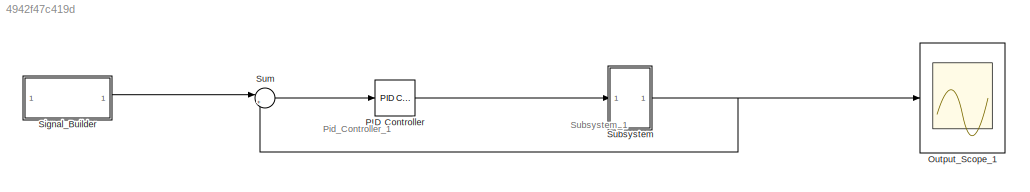
MODEL slx_4942f47c419d
KIND model
CONFIG AbsTol = auto
CONFIG EnableMultiTasking = off
CONFIG FixedStep = auto
CONFIG MaxStep = auto
CONFIG MinStep = auto
CONFIG RelTol = 1e-3
CONFIG SampleTimeConstraint = Unconstrained
CONFIG SolverName = VariableStepAuto
CONFIG StartTime = 0.0
CONFIG StopTime = 1000
BLOCK [Scope] Output_Scope_1
  Floating = off
  NumInputPorts = 1
  ScopeSpecificationString = Simulink.scopes.TimeScopeBlockCfg('CurrentConfiguration', extmgr.ConfigurationSet(extmgr.Configuration('Core','General UI',true),extmgr.Configuration('Core','Source UI',true),extmgr.Configuration('Sources','WiredSimulink',true),extmgr.Configuration('Visuals','Time Domain',true,'SerializedDisplays',{struct('MinYLimReal','-0.16657','MaxYLimReal','1.56962','YLabelReal','','MinYLimMag','0.00000','MaxY...<+1381ch>
BLOCK [Reference] PID Controller  REF=slpidlib/PID Controller
  LibrarySourceBlock = simulink/Continuous/PID Controller
  SourceBlock = slpidlib/PID Controller
  SourceType = PID 1dof
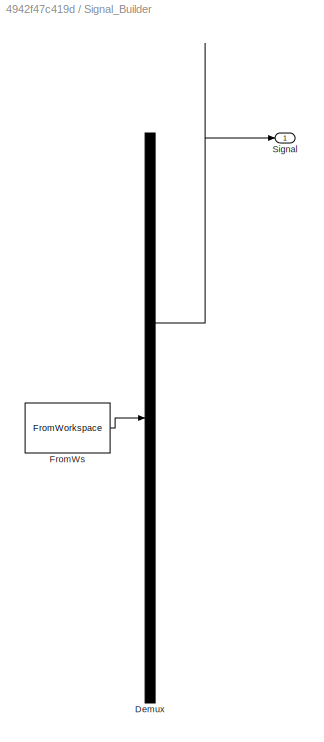
BLOCK [SubSystem] Signal_Builder
  ClipboardFcn = sigbuilder_block('clipboard');
  CloseFcn = sigbuilder_block('close');
  ContinueFcn = sigbuilder_block('continue');
  CopyFcn = sigbuilder_block('copy');
  DeleteFcn = sigbuilder_block('delete');
  LoadFcn = sigbuilder_block('load');
  MaskHideContents = on
  ModelCloseFcn = sigbuilder_block('modelClose');
  NameChangeFcn = sigbuilder_block('namechange');
  OpenFcn = sigbuilder_block('open',[184 155 551 361 ]);
  PauseFcn = sigbuilder_block('pause');
  PreSaveFcn = sigbuilder_block('preSave');
  StartFcn = sigbuilder_block('start');
  StopFcn = sigbuilder_block('stop');
  Tag = STV Subsys
BLOCK [Demux] Signal_Builder/Demux
  DisplayOption = none
  Outputs = 1
  Tag = STV Demux
BLOCK [FromWorkspace] Signal_Builder/FromWs
  Tag = STV FromWs
  VariableName = tuvar
BLOCK [Outport] Signal_Builder/Signal 
  Tag = STV Outport
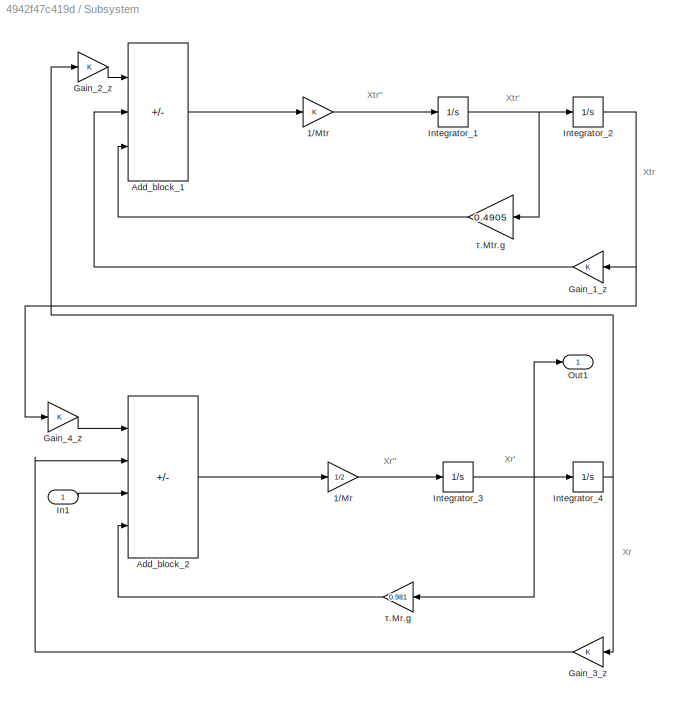
BLOCK [SubSystem] Subsystem
BLOCK [Gain] Subsystem/1//Mr
  Gain = 1/2
BLOCK [Gain] Subsystem/1//Mtr
BLOCK [Sum] Subsystem/Add_block_1
  IconShape = rectangular
  Inputs = +--
BLOCK [Sum] Subsystem/Add_block_2
  IconShape = rectangular
  Inputs = +-+-
BLOCK [Gain] Subsystem/Gain_1_z
BLOCK [Gain] Subsystem/Gain_2_z
BLOCK [Gain] Subsystem/Gain_3_z
BLOCK [Gain] Subsystem/Gain_4_z
BLOCK [Inport] Subsystem/In1
BLOCK [Integrator] Subsystem/Integrator_1
BLOCK [Integrator] Subsystem/Integrator_2
BLOCK [Integrator] Subsystem/Integrator_3
BLOCK [Integrator] Subsystem/Integrator_4
BLOCK [Outport] Subsystem/Out1
BLOCK [Gain] Subsystem/τ.Mr.g
  Gain = 0.981
BLOCK [Gain] Subsystem/τ.Mtr.g
  Gain = 0.4905
BLOCK [Sum] Sum
  Inputs = |+-
ANNOTATION (root): Pid_Controller_1
ANNOTATION (root): Subsystem_1
ANNOTATION Subsystem: Xtr''
ANNOTATION Subsystem: Xr
ANNOTATION Subsystem: Xr'
ANNOTATION Subsystem: Xr''
ANNOTATION Subsystem: Xtr
ANNOTATION Subsystem: Xtr'
LINE PID Controller:1 -> Subsystem:1
LINE Signal_Builder:1 -> Sum:1
LINE Subsystem/1//Mr:1 -> Subsystem/Integrator_3:1
LINE Subsystem/1//Mtr:1 -> Subsystem/Integrator_1:1
LINE Subsystem/Add_block_1:1 -> Subsystem/1//Mtr:1
LINE Subsystem/Add_block_2:1 -> Subsystem/1//Mr:1
LINE Subsystem/Gain_1_z:1 -> Subsystem/Add_block_1:2
LINE Subsystem/Gain_2_z:1 -> Subsystem/Add_block_1:1
LINE Subsystem/Gain_3_z:1 -> Subsystem/Add_block_2:2
LINE Subsystem/Gain_4_z:1 -> Subsystem/Add_block_2:1
LINE Subsystem/In1:1 -> Subsystem/Add_block_2:3
NET Subsystem/Integrator_1:1 -> Subsystem/Integrator_2:1, Subsystem/τ.Mtr.g:1
NET Subsystem/Integrator_2:1 -> Subsystem/Gain_1_z:1, Subsystem/Gain_4_z:1
NET Subsystem/Integrator_3:1 -> Subsystem/Integrator_4:1, Subsystem/Out1:1, Subsystem/τ.Mr.g:1
NET Subsystem/Integrator_4:1 -> Subsystem/Gain_2_z:1, Subsystem/Gain_3_z:1
LINE Subsystem/τ.Mr.g:1 -> Subsystem/Add_block_2:4
LINE Subsystem/τ.Mtr.g:1 -> Subsystem/Add_block_1:3
NET Subsystem:1 -> Output_Scope_1:1, Sum:2
LINE Sum:1 -> PID Controller:1
note: NET lines group one-source signal fan-out (src -> all destinations, sorted); 1:1 wires keep LINE
